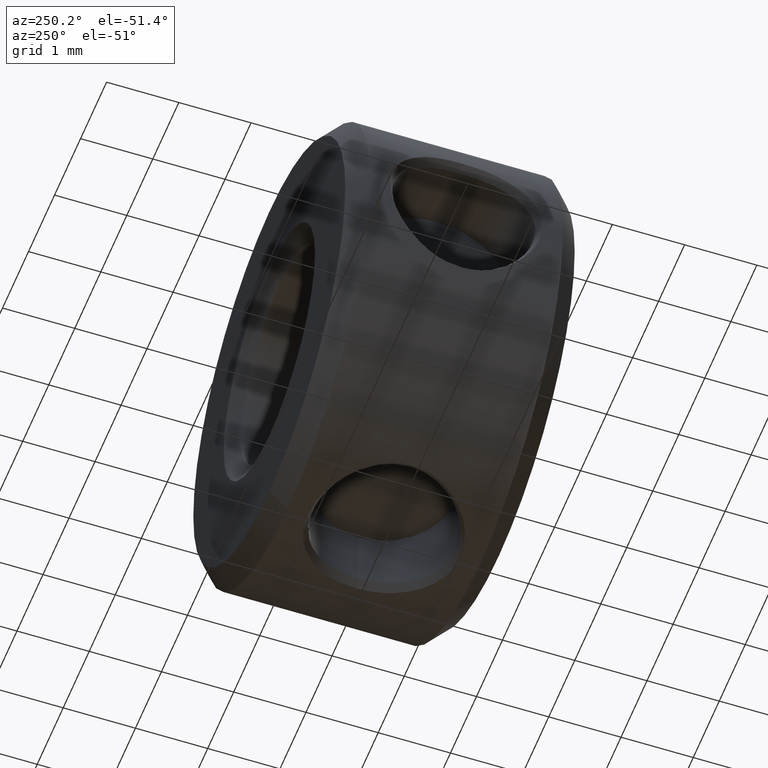
[diagram: clean part render]
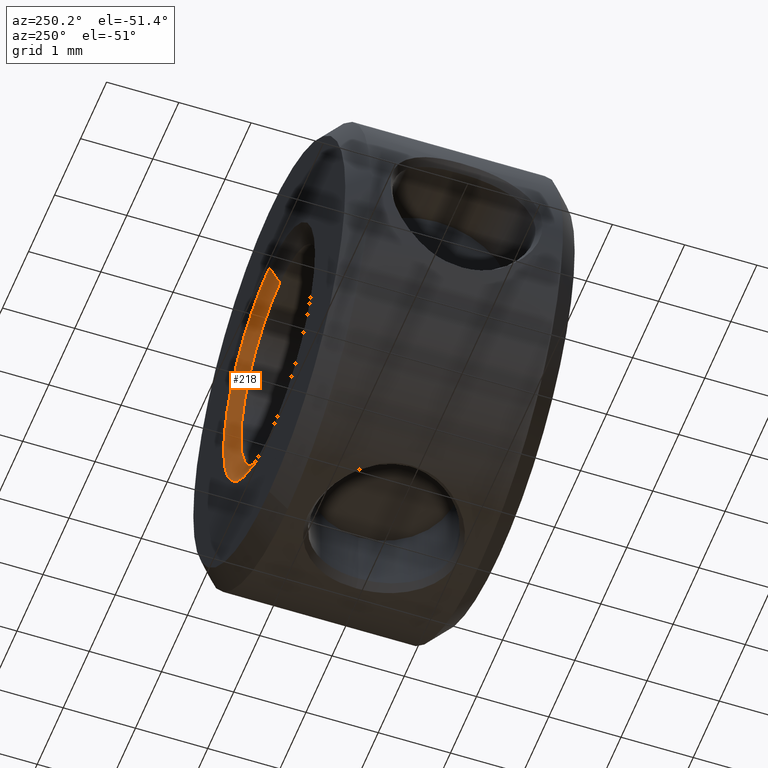
[diagram: same view with one face highlighted and labeled with its STEP entity id]
A machine part, auxiliary view. The second image highlights one B-rep face of the part: STEP entity #218.
In plain terms, the highlighted conical surface has half-angle 60 deg.
Its self-contained STEP definition (entity closure, byte-faithful):
#216 = EDGE_CURVE ( 'NONE', #296, #284, #1485, .T. ) ;
#218 = ADVANCED_FACE ( 'NONE', ( #1452 ), #1492, .F. ) ;
#219 = EDGE_LOOP ( 'NONE', ( #220, #221, #223, #224 ) ) ;
#220 = ORIENTED_EDGE ( 'NONE', *, *, #295, .F. ) ;
#221 = ORIENTED_EDGE ( 'NONE', *, *, #222, .F. ) ;
#222 = EDGE_CURVE ( 'NONE', #308, #305, #1493, .T. ) ;
#223 = ORIENTED_EDGE ( 'NONE', *, *, #287, .T. ) ;
#224 = ORIENTED_EDGE ( 'NONE', *, *, #216, .T. ) ;
#284 = VERTEX_POINT ( 'NONE', #1718 ) ;
#287 = EDGE_CURVE ( 'NONE', #308, #296, #1716, .T. ) ;
#295 = EDGE_CURVE ( 'NONE', #305, #284, #1766, .T. ) ;
#296 = VERTEX_POINT ( 'NONE', #1762 ) ;
#305 = VERTEX_POINT ( 'NONE', #1751 ) ;
#308 = VERTEX_POINT ( 'NONE', #1745 ) ;
#1452 = FACE_OUTER_BOUND ( 'NONE', #219, .T. ) ;
#1453 = DIRECTION ( 'NONE',  ( 0.0000000000000000000, 0.0000000000000000000, 1.000000000000000000 ) ) ;
#1454 = DIRECTION ( 'NONE',  ( 0.0000000000000000000, 1.000000000000000000, 0.0000000000000000000 ) ) ;
#1455 = AXIS2_PLACEMENT_3D ( 'NONE', #1484, #1454, #1453 ) ;
#1484 = CARTESIAN_POINT ( 'NONE',  ( 1.252768374745863700E-015, 1.587500000000000400, 0.0000000000000000000 ) ) ;
#1485 = CIRCLE ( 'NONE', #1455, 1.753999999999999100 ) ;
#1490 = DIRECTION ( 'NONE',  ( 0.0000000000000000000, 1.000000000000000000, 0.0000000000000000000 ) ) ;
#1491 = AXIS2_PLACEMENT_3D ( 'NONE', #1494, #1490, #1579 ) ;
#1492 = CONICAL_SURFACE ( 'NONE', #1491, 1.499999999999998900, 1.047197551196593900 ) ;
#1493 = CIRCLE ( 'NONE', #1578, 1.499999999999998900 ) ;
#1494 = CARTESIAN_POINT ( 'NONE',  ( 1.252768374745863700E-015, 1.440853031625834100, 0.0000000000000000000 ) ) ;
#1575 = DIRECTION ( 'NONE',  ( 0.0000000000000000000, 0.0000000000000000000, 1.000000000000000000 ) ) ;
#1576 = DIRECTION ( 'NONE',  ( 0.0000000000000000000, 1.000000000000000000, 0.0000000000000000000 ) ) ;
#1577 = CARTESIAN_POINT ( 'NONE',  ( 1.252768374745863700E-015, 1.440853031625834100, 0.0000000000000000000 ) ) ;
#1578 = AXIS2_PLACEMENT_3D ( 'NONE', #1577, #1576, #1575 ) ;
#1579 = DIRECTION ( 'NONE',  ( 0.0000000000000000000, 0.0000000000000000000, 1.000000000000000000 ) ) ;
#1713 = DIRECTION ( 'NONE',  ( 0.0000000000000000000, 0.5000000000000034400, 0.8660254037844367100 ) ) ;
#1714 = VECTOR ( 'NONE', #1713, 999.9999999999998900 ) ;
#1715 = CARTESIAN_POINT ( 'NONE',  ( 1.252768374745863700E-015, 1.440853031625834100, 1.499999999999998900 ) ) ;
#1716 = LINE ( 'NONE', #1715, #1714 ) ;
#1718 = CARTESIAN_POINT ( 'NONE',  ( 1.467571423316309400E-015, 1.587500000000000400, -1.753999999999999100 ) ) ;
#1745 = CARTESIAN_POINT ( 'NONE',  ( 1.252768374745863700E-015, 1.440853031625834100, 1.499999999999998900 ) ) ;
#1751 = CARTESIAN_POINT ( 'NONE',  ( 1.452018408967138100E-015, 1.440853031625834100, -1.499999999999998900 ) ) ;
#1762 = CARTESIAN_POINT ( 'NONE',  ( 1.252768374745863700E-015, 1.587500000000000400, 1.753999999999999100 ) ) ;
#1763 = DIRECTION ( 'NONE',  ( 1.060575238724904700E-016, 0.5000000000000034400, -0.8660254037844367100 ) ) ;
#1764 = VECTOR ( 'NONE', #1763, 999.9999999999998900 ) ;
#1765 = CARTESIAN_POINT ( 'NONE',  ( 1.436465394617966800E-015, 1.440853031625834100, -1.499999999999998900 ) ) ;
#1766 = LINE ( 'NONE', #1765, #1764 ) ;